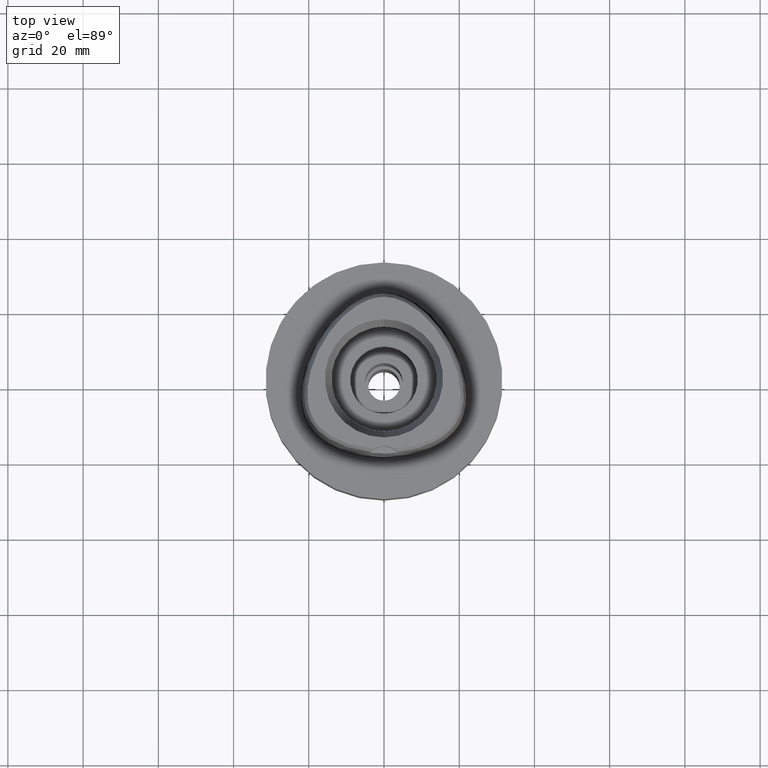
[diagram: clean part render]
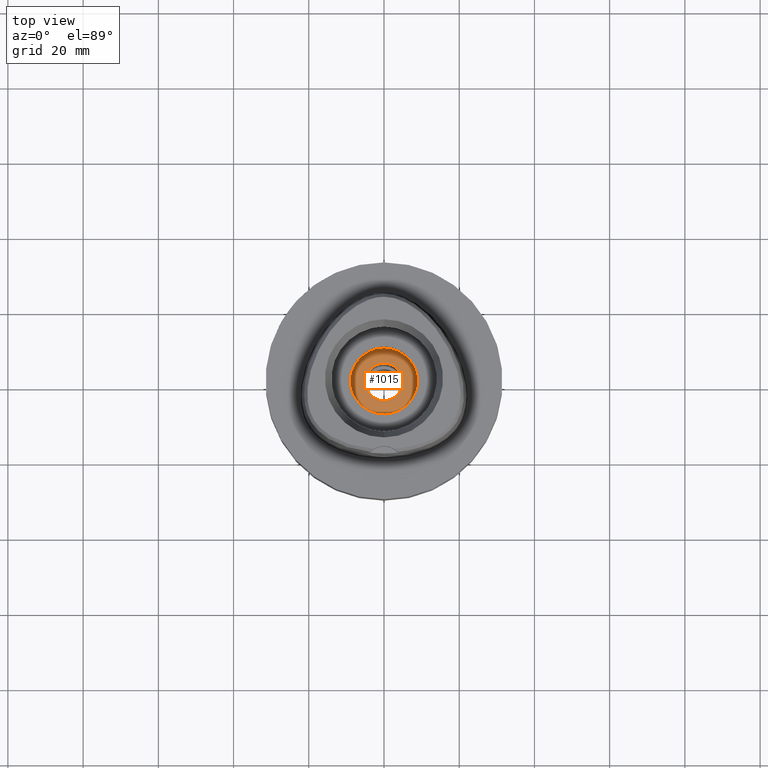
[diagram: same view with one face highlighted and labeled with its STEP entity id]
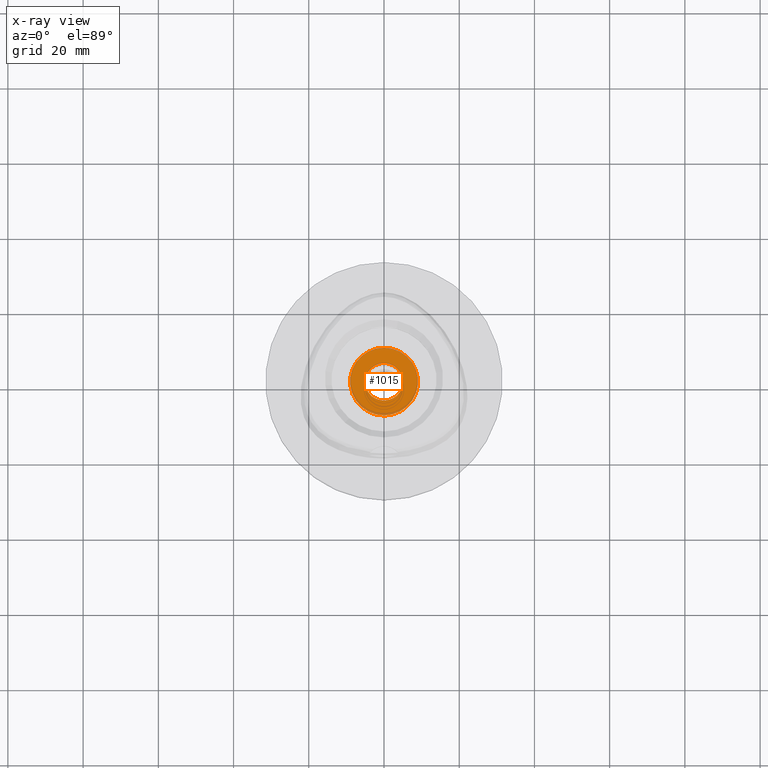
[diagram: x-ray of the same camera — body ghosted, the highlighted face saturated]
A machine part, top view. The second image highlights one B-rep face of the part: STEP entity #1015.
The next image is the same camera in x-ray: the body ghosted, the highlighted face saturated — about 5% of this face is hidden behind the body in this view.
In plain terms, the highlighted planar face has unit normal (0, 0, -1).
Its self-contained STEP definition (entity closure, byte-faithful):
#92 = EDGE_CURVE ( 'NONE', #2329, #183, #5416, .T. ) ;
#183 = VERTEX_POINT ( 'NONE', #2233 ) ;
#219 = AXIS2_PLACEMENT_3D ( 'NONE', #2058, #768, #1159 ) ;
#293 = CARTESIAN_POINT ( 'NONE',  ( 0.0000000000000000000, -9.000000000000000000, -16.00000000000000000 ) ) ;
#370 = EDGE_LOOP ( 'NONE', ( #4367, #3166 ) ) ;
#380 = FACE_OUTER_BOUND ( 'NONE', #4350, .T. ) ;
#437 = CARTESIAN_POINT ( 'NONE',  ( 0.0000000000000000000, 1.028703311283999754E-14, -16.00000000000000000 ) ) ;
#617 = DIRECTION ( 'NONE',  ( 0.0000000000000000000, 0.0000000000000000000, 1.000000000000000000 ) ) ;
#663 = DIRECTION ( 'NONE',  ( 0.0000000000000000000, 0.0000000000000000000, 1.000000000000000000 ) ) ;
#768 = DIRECTION ( 'NONE',  ( 0.0000000000000000000, 0.0000000000000000000, -1.000000000000000000 ) ) ;
#829 = DIRECTION ( 'NONE',  ( 0.0000000000000000000, 0.0000000000000000000, -1.000000000000000000 ) ) ;
#1015 = ADVANCED_FACE ( 'NONE', ( #380, #2596 ), #4307, .F. ) ;
#1159 = DIRECTION ( 'NONE',  ( 0.0000000000000000000, 1.000000000000000000, 0.0000000000000000000 ) ) ;
#1326 = CARTESIAN_POINT ( 'NONE',  ( 0.0000000000000000000, 5.000000000000000000, -16.00000000000000000 ) ) ;
#1390 = CIRCLE ( 'NONE', #2931, 5.000000000000000000 ) ;
#1395 = CARTESIAN_POINT ( 'NONE',  ( 0.0000000000000000000, 1.303636517692000002E-14, -16.00000000000000000 ) ) ;
#1615 = DIRECTION ( 'NONE',  ( 0.0000000000000000000, -1.000000000000000000, 0.0000000000000000000 ) ) ;
#1787 = CARTESIAN_POINT ( 'NONE',  ( 0.0000000000000000000, -5.000000000000000000, -16.00000000000000000 ) ) ;
#1892 = VERTEX_POINT ( 'NONE', #1787 ) ;
#2058 = CARTESIAN_POINT ( 'NONE',  ( 0.0000000000000000000, 0.0000000000000000000, -16.00000000000000000 ) ) ;
#2114 = CIRCLE ( 'NONE', #2845, 5.000000000000000000 ) ;
#2161 = DIRECTION ( 'NONE',  ( 0.0000000000000000000, 0.0000000000000000000, -1.000000000000000000 ) ) ;
#2233 = CARTESIAN_POINT ( 'NONE',  ( 0.0000000000000000000, 9.000000000000000000, -16.00000000000000000 ) ) ;
#2329 = VERTEX_POINT ( 'NONE', #293 ) ;
#2501 = ORIENTED_EDGE ( 'NONE', *, *, #92, .F. ) ;
#2596 = FACE_BOUND ( 'NONE', #370, .T. ) ;
#2626 = EDGE_CURVE ( 'NONE', #5359, #1892, #1390, .T. ) ;
#2845 = AXIS2_PLACEMENT_3D ( 'NONE', #1395, #663, #3178 ) ;
#2853 = EDGE_CURVE ( 'NONE', #183, #2329, #3112, .T. ) ;
#2931 = AXIS2_PLACEMENT_3D ( 'NONE', #4927, #617, #5374 ) ;
#3112 = CIRCLE ( 'NONE', #219, 9.000000000000000000 ) ;
#3117 = ORIENTED_EDGE ( 'NONE', *, *, #2853, .F. ) ;
#3166 = ORIENTED_EDGE ( 'NONE', *, *, #3368, .F. ) ;
#3178 = DIRECTION ( 'NONE',  ( 0.0000000000000000000, -1.000000000000000000, 0.0000000000000000000 ) ) ;
#3368 = EDGE_CURVE ( 'NONE', #1892, #5359, #2114, .T. ) ;
#3804 = AXIS2_PLACEMENT_3D ( 'NONE', #5023, #829, #1615 ) ;
#3877 = DIRECTION ( 'NONE',  ( 0.0000000000000000000, -1.000000000000000000, 0.0000000000000000000 ) ) ;
#3989 = AXIS2_PLACEMENT_3D ( 'NONE', #437, #2161, #3877 ) ;
#4307 = PLANE ( 'NONE',  #3989 ) ;
#4350 = EDGE_LOOP ( 'NONE', ( #3117, #2501 ) ) ;
#4367 = ORIENTED_EDGE ( 'NONE', *, *, #2626, .F. ) ;
#4927 = CARTESIAN_POINT ( 'NONE',  ( 0.0000000000000000000, 1.303636517692000002E-14, -16.00000000000000000 ) ) ;
#5023 = CARTESIAN_POINT ( 'NONE',  ( 0.0000000000000000000, 0.0000000000000000000, -16.00000000000000000 ) ) ;
#5359 = VERTEX_POINT ( 'NONE', #1326 ) ;
#5374 = DIRECTION ( 'NONE',  ( 0.0000000000000000000, 1.000000000000000000, 0.0000000000000000000 ) ) ;
#5416 = CIRCLE ( 'NONE', #3804, 9.000000000000000000 ) ;